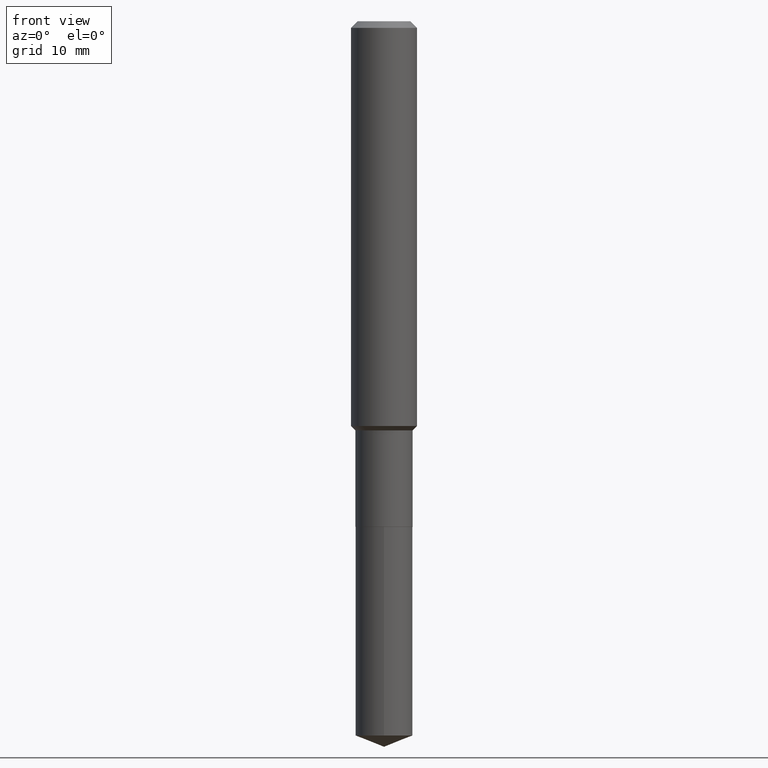
[diagram: clean part render]
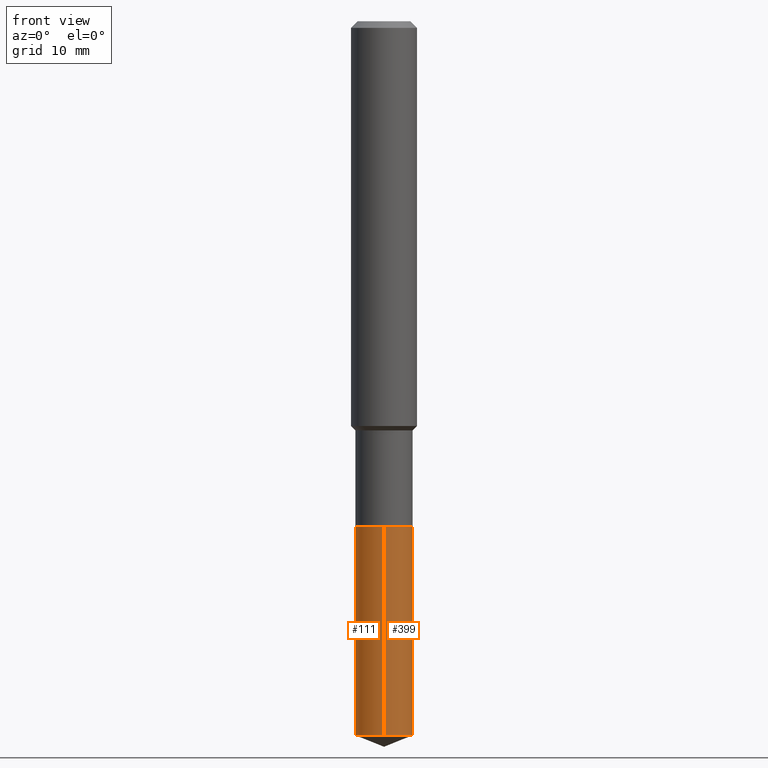
[diagram: same view with one multi-face feature highlighted, each face labeled with its STEP entity id]
A machine part, front view. The highlighted faces form ONE feature: a constant-radius fillet chain: 2 tangent blend faces with common blend radius 2.5997 mm. The faces share edges in the B-rep.
Their STEP definitions:
[1] entity #111 (Cylinder):
#10 = LINE ( 'NONE', #156, #126 ) ;
#15 = DIRECTION ( 'NONE',  ( -6.982962677686265922E-15, -1.000000000000000000, 2.669123589315352370E-15 ) ) ;
#46 = AXIS2_PLACEMENT_3D ( 'NONE', #384, #95, #282 ) ;
#47 = CIRCLE ( 'NONE', #329, 0.1023499999999999965 ) ;
#52 = EDGE_CURVE ( 'NONE', #373, #94, #458, .T. ) ;
#87 = DIRECTION ( 'NONE',  ( -2.445580598395875501E-29, 3.491321246034550326E-15, 1.000000000000000000 ) ) ;
#88 = ORIENTED_EDGE ( 'NONE', *, *, #52, .T. ) ;
#94 = VERTEX_POINT ( 'NONE', #138 ) ;
#95 = DIRECTION ( 'NONE',  ( -2.445580598395875501E-29, 3.491321246034550326E-15, 1.000000000000000000 ) ) ;
#111 = ADVANCED_FACE ( 'NONE', ( #369 ), #487, .T. ) ;
#115 = DIRECTION ( 'NONE',  ( -2.445580598395875221E-29, 3.491321246034550326E-15, 1.000000000000000000 ) ) ;
#126 = VECTOR ( 'NONE', #315, 39.37007874015748143 ) ;
#138 = CARTESIAN_POINT ( 'NONE',  ( -7.147062300611268790E-16, -0.1023500000000089477, -2.558083262820809445 ) ) ;
#142 = CARTESIAN_POINT ( 'NONE',  ( 4.428744008001282238E-29, -6.323072704644935995E-15, -1.810999999999999943 ) ) ;
#149 = VERTEX_POINT ( 'NONE', #478 ) ;
#156 = CARTESIAN_POINT ( 'NONE',  ( -7.147062300611450228E-16, -0.1023500000000063248, -1.810999999999999721 ) ) ;
#159 = ORIENTED_EDGE ( 'NONE', *, *, #463, .T. ) ;
#199 = EDGE_LOOP ( 'NONE', ( #439, #88, #159, #233 ) ) ;
#219 = CARTESIAN_POINT ( 'NONE',  ( 7.272404900505252301E-16, 0.1023499999999911009, -2.558083262820810777 ) ) ;
#233 = ORIENTED_EDGE ( 'NONE', *, *, #466, .F. ) ;
#261 = CARTESIAN_POINT ( 'NONE',  ( 7.272404900505066918E-16, 0.1023499999999936821, -1.811000000000000165 ) ) ;
#269 = CARTESIAN_POINT ( 'NONE',  ( -7.147062300611450228E-16, -0.1023500000000063248, -1.810999999999999721 ) ) ;
#282 = DIRECTION ( 'NONE',  ( -6.982962677686265922E-15, -1.000000000000000000, 5.338247178630704739E-15 ) ) ;
#296 = VERTEX_POINT ( 'NONE', #269 ) ;
#297 = LINE ( 'NONE', #261, #442 ) ;
#299 = DIRECTION ( 'NONE',  ( -2.445580598395875501E-29, 3.491321246034550326E-15, 1.000000000000000000 ) ) ;
#315 = DIRECTION ( 'NONE',  ( -2.445580598395875221E-29, 3.491321246034550326E-15, 1.000000000000000000 ) ) ;
#329 = AXIS2_PLACEMENT_3D ( 'NONE', #467, #87, #15 ) ;
#366 = AXIS2_PLACEMENT_3D ( 'NONE', #142, #299, #454 ) ;
#369 = FACE_OUTER_BOUND ( 'NONE', #199, .T. ) ;
#373 = VERTEX_POINT ( 'NONE', #219 ) ;
#378 = EDGE_CURVE ( 'NONE', #373, #149, #297, .T. ) ;
#384 = CARTESIAN_POINT ( 'NONE',  ( 6.255796340942141358E-29, -8.931380372688045431E-15, -2.558083262820809889 ) ) ;
#439 = ORIENTED_EDGE ( 'NONE', *, *, #378, .F. ) ;
#442 = VECTOR ( 'NONE', #115, 39.37007874015748143 ) ;
#454 = DIRECTION ( 'NONE',  ( -6.982962677686265922E-15, -1.000000000000000000, 2.669123589315352370E-15 ) ) ;
#458 = CIRCLE ( 'NONE', #46, 0.1023499999999999965 ) ;
#463 = EDGE_CURVE ( 'NONE', #94, #296, #10, .T. ) ;
#466 = EDGE_CURVE ( 'NONE', #149, #296, #47, .T. ) ;
#467 = CARTESIAN_POINT ( 'NONE',  ( 4.428744008001282238E-29, -6.323072704644935995E-15, -1.810999999999999943 ) ) ;
#478 = CARTESIAN_POINT ( 'NONE',  ( 7.272404900505251315E-16, 0.1023499999999936821, -1.811000000000000165 ) ) ;
#487 = CYLINDRICAL_SURFACE ( 'NONE', #366, 0.1023499999999999965 ) ;
[2] entity #399 (Cylinder):
#10 = LINE ( 'NONE', #156, #126 ) ;
#12 = DIRECTION ( 'NONE',  ( -6.982962677686265922E-15, -1.000000000000000000, 2.669123589315352370E-15 ) ) ;
#51 = AXIS2_PLACEMENT_3D ( 'NONE', #122, #380, #12 ) ;
#68 = CYLINDRICAL_SURFACE ( 'NONE', #51, 0.1023499999999999965 ) ;
#76 = DIRECTION ( 'NONE',  ( -6.982962677686265922E-15, -1.000000000000000000, 2.669123589315352370E-15 ) ) ;
#94 = VERTEX_POINT ( 'NONE', #138 ) ;
#97 = CIRCLE ( 'NONE', #337, 0.1023499999999999965 ) ;
#104 = FACE_OUTER_BOUND ( 'NONE', #429, .T. ) ;
#115 = DIRECTION ( 'NONE',  ( -2.445580598395875221E-29, 3.491321246034550326E-15, 1.000000000000000000 ) ) ;
#122 = CARTESIAN_POINT ( 'NONE',  ( 4.428744008001282238E-29, -6.323072704644935995E-15, -1.810999999999999943 ) ) ;
#123 = CARTESIAN_POINT ( 'NONE',  ( 6.255796340942141358E-29, -8.931380372688045431E-15, -2.558083262820809889 ) ) ;
#126 = VECTOR ( 'NONE', #315, 39.37007874015748143 ) ;
#129 = ORIENTED_EDGE ( 'NONE', *, *, #378, .T. ) ;
#130 = AXIS2_PLACEMENT_3D ( 'NONE', #175, #227, #76 ) ;
#138 = CARTESIAN_POINT ( 'NONE',  ( -7.147062300611268790E-16, -0.1023500000000089477, -2.558083262820809445 ) ) ;
#149 = VERTEX_POINT ( 'NONE', #478 ) ;
#156 = CARTESIAN_POINT ( 'NONE',  ( -7.147062300611450228E-16, -0.1023500000000063248, -1.810999999999999721 ) ) ;
#175 = CARTESIAN_POINT ( 'NONE',  ( 4.428744008001282238E-29, -6.323072704644935995E-15, -1.810999999999999943 ) ) ;
#219 = CARTESIAN_POINT ( 'NONE',  ( 7.272404900505252301E-16, 0.1023499999999911009, -2.558083262820810777 ) ) ;
#227 = DIRECTION ( 'NONE',  ( -2.445580598395875501E-29, 3.491321246034550326E-15, 1.000000000000000000 ) ) ;
#241 = ORIENTED_EDGE ( 'NONE', *, *, #309, .T. ) ;
#259 = ORIENTED_EDGE ( 'NONE', *, *, #339, .F. ) ;
#261 = CARTESIAN_POINT ( 'NONE',  ( 7.272404900505066918E-16, 0.1023499999999936821, -1.811000000000000165 ) ) ;
#269 = CARTESIAN_POINT ( 'NONE',  ( -7.147062300611450228E-16, -0.1023500000000063248, -1.810999999999999721 ) ) ;
#274 = DIRECTION ( 'NONE',  ( -2.445580598395875501E-29, 3.491321246034550326E-15, 1.000000000000000000 ) ) ;
#296 = VERTEX_POINT ( 'NONE', #269 ) ;
#297 = LINE ( 'NONE', #261, #442 ) ;
#301 = ORIENTED_EDGE ( 'NONE', *, *, #463, .F. ) ;
#309 = EDGE_CURVE ( 'NONE', #94, #373, #97, .T. ) ;
#315 = DIRECTION ( 'NONE',  ( -2.445580598395875221E-29, 3.491321246034550326E-15, 1.000000000000000000 ) ) ;
#322 = CIRCLE ( 'NONE', #130, 0.1023499999999999965 ) ;
#337 = AXIS2_PLACEMENT_3D ( 'NONE', #123, #274, #477 ) ;
#339 = EDGE_CURVE ( 'NONE', #296, #149, #322, .T. ) ;
#373 = VERTEX_POINT ( 'NONE', #219 ) ;
#378 = EDGE_CURVE ( 'NONE', #373, #149, #297, .T. ) ;
#380 = DIRECTION ( 'NONE',  ( -2.445580598395875501E-29, 3.491321246034550326E-15, 1.000000000000000000 ) ) ;
#399 = ADVANCED_FACE ( 'NONE', ( #104 ), #68, .T. ) ;
#429 = EDGE_LOOP ( 'NONE', ( #241, #129, #259, #301 ) ) ;
#442 = VECTOR ( 'NONE', #115, 39.37007874015748143 ) ;
#463 = EDGE_CURVE ( 'NONE', #94, #296, #10, .T. ) ;
#477 = DIRECTION ( 'NONE',  ( -6.982962677686265922E-15, -1.000000000000000000, 5.338247178630704739E-15 ) ) ;
#478 = CARTESIAN_POINT ( 'NONE',  ( 7.272404900505251315E-16, 0.1023499999999936821, -1.811000000000000165 ) ) ;